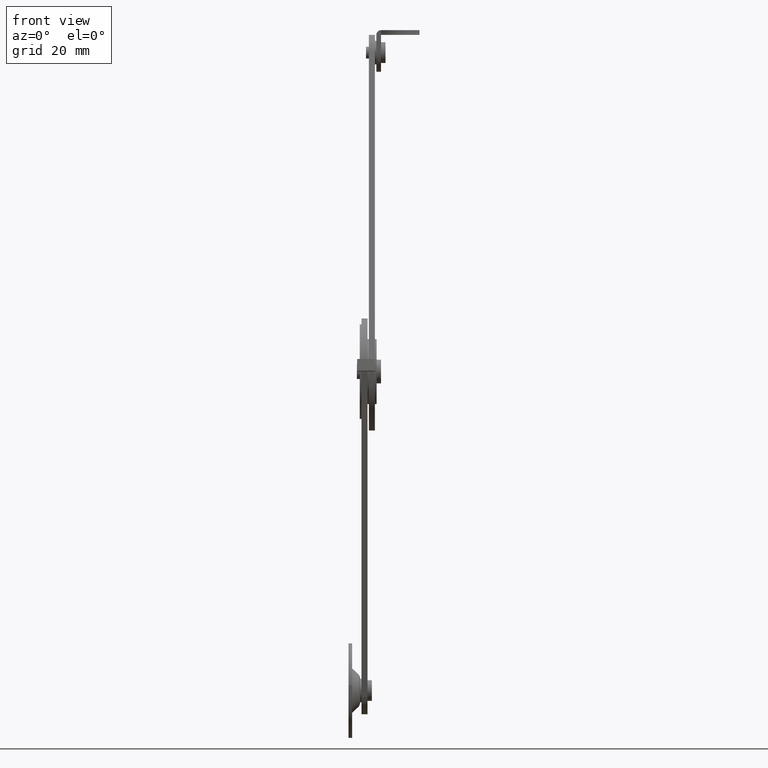
[diagram: clean part render]
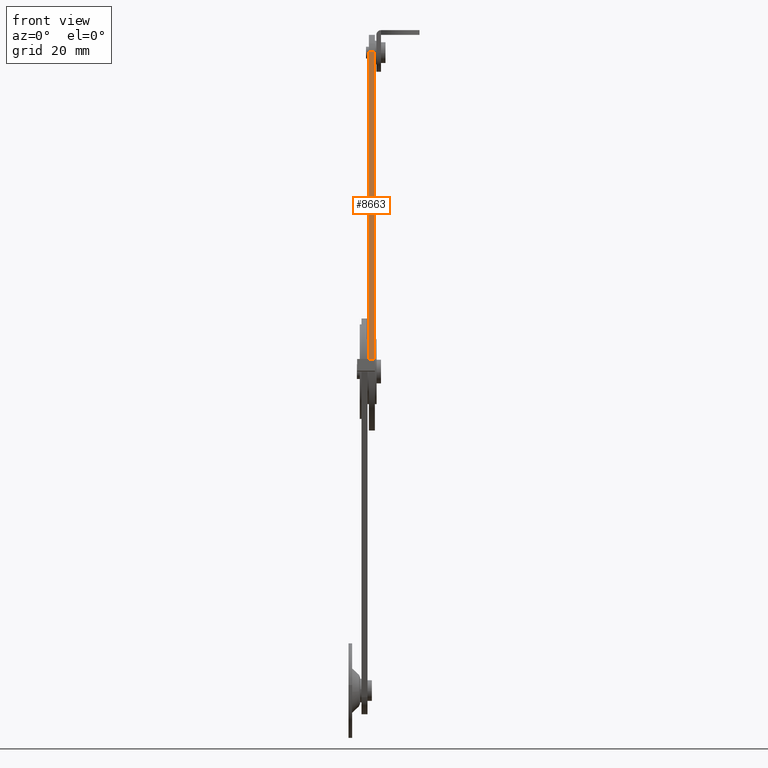
[diagram: same view with one face highlighted and labeled with its STEP entity id]
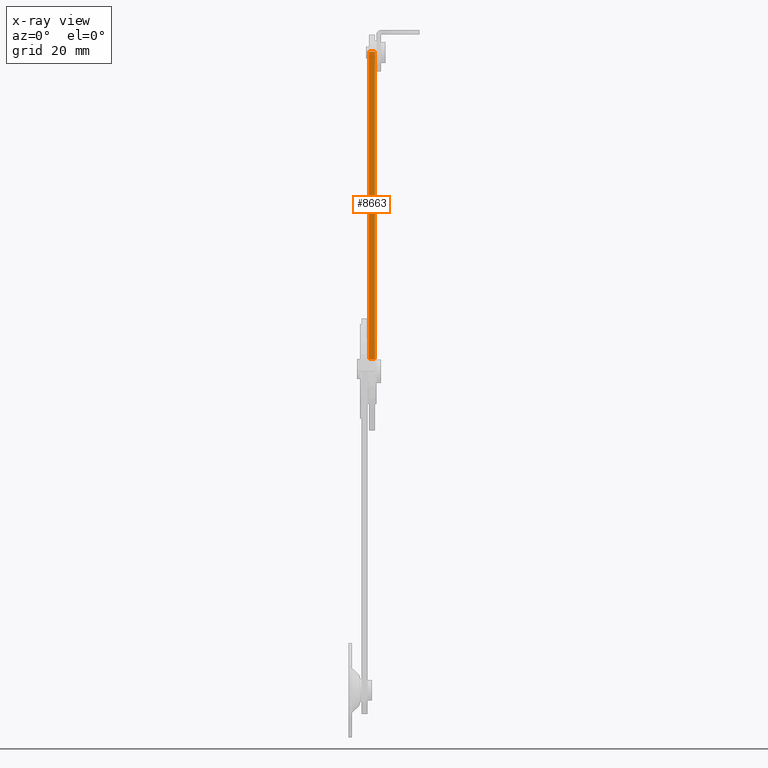
[diagram: x-ray of the same camera — body ghosted, the highlighted face saturated]
A machine part, front view. The second image highlights one B-rep face of the part: STEP entity #8663.
The next image is the same camera in x-ray: the body ghosted, the highlighted face saturated — about 0% of this face is hidden behind the body in this view.
In plain terms, the highlighted face is a freeform B-spline surface patch.
Its self-contained STEP definition (entity closure, byte-faithful):
#8443=CARTESIAN_POINT('',(8.899994000000000,-8.020661000000180,108.291901000000190));
#8444=VERTEX_POINT('',#8443);
#8458=CARTESIAN_POINT('',(8.899994000000000,-38.712667673070349,4.205233777586670));
#8459=VERTEX_POINT('',#8458);
#8460=CARTESIAN_POINT('',(8.899994000000000,-8.020661000000180,108.291901000000190));
#8461=CARTESIAN_POINT('',(8.899994000000000,-38.712667673070349,4.205233777586670));
#8462=QUASI_UNIFORM_CURVE('',1,(#8460,#8461),.UNSPECIFIED.,.F.,.U.);
#8463=EDGE_CURVE('',#8444,#8459,#8462,.T.);
#8624=CARTESIAN_POINT('',(6.899994000000080,-38.712667673070349,4.205233777586670));
#8625=VERTEX_POINT('',#8624);
#8626=CARTESIAN_POINT('',(6.899994000000080,-38.712667673070349,4.205233777586670));
#8627=CARTESIAN_POINT('',(8.899994000000000,-38.712667673070349,4.205233777586670));
#8628=QUASI_UNIFORM_CURVE('',1,(#8626,#8627),.UNSPECIFIED.,.F.,.U.);
#8629=EDGE_CURVE('',#8625,#8459,#8628,.T.);
#8642=CARTESIAN_POINT('',(6.800093898374461,-6.487595326167379,113.491029826019600));
#8643=CARTESIAN_POINT('',(6.800093898374461,-40.245734170126923,-0.993897840254696));
#8644=CARTESIAN_POINT('',(8.999893904930291,-6.487595326167379,113.491029826019600));
#8645=CARTESIAN_POINT('',(8.999893904930291,-40.245734170126923,-0.993897840254696));
#8646=B_SPLINE_SURFACE_WITH_KNOTS('',1,1,((#8642,#8644),(#8643,#8645)),.UNSPECIFIED.,.F.,.F.,.U.,(2,2),(2,2),(0.0,119.358328578110100),(0.0,2.199800006555830),.UNSPECIFIED.);
#8647=ORIENTED_EDGE('',*,*,#8463,.F.);
#8648=CARTESIAN_POINT('',(6.899994000000080,-8.020661000000180,108.291901000000190));
#8649=VERTEX_POINT('',#8648);
#8650=CARTESIAN_POINT('',(6.899994000000080,-8.020661000000180,108.291901000000190));
#8651=CARTESIAN_POINT('',(8.899994000000000,-8.020661000000180,108.291901000000190));
#8652=QUASI_UNIFORM_CURVE('',1,(#8650,#8651),.UNSPECIFIED.,.F.,.U.);
#8653=EDGE_CURVE('',#8649,#8444,#8652,.T.);
#8654=ORIENTED_EDGE('',*,*,#8653,.F.);
#8655=CARTESIAN_POINT('',(6.899994000000080,-8.020661000000180,108.291901000000190));
#8656=CARTESIAN_POINT('',(6.899994000000080,-38.712667673070349,4.205233777586670));
#8657=QUASI_UNIFORM_CURVE('',1,(#8655,#8656),.UNSPECIFIED.,.F.,.U.);
#8658=EDGE_CURVE('',#8649,#8625,#8657,.T.);
#8659=ORIENTED_EDGE('',*,*,#8658,.T.);
#8660=ORIENTED_EDGE('',*,*,#8629,.T.);
#8661=EDGE_LOOP('',(#8647,#8654,#8659,#8660));
#8662=FACE_OUTER_BOUND('',#8661,.T.);
#8663=ADVANCED_FACE('',(#8662),#8646,.T.);